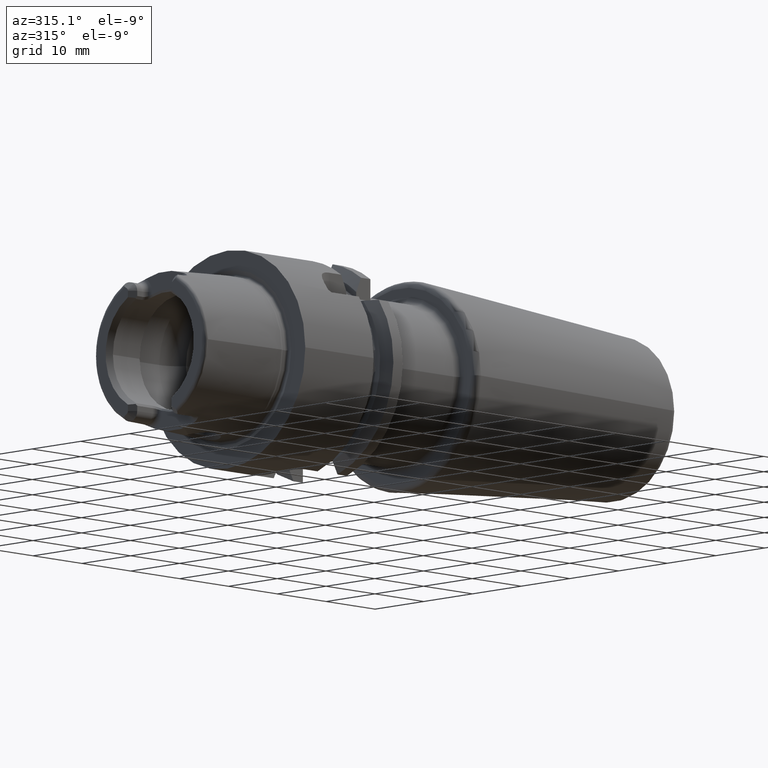
[diagram: clean part render]
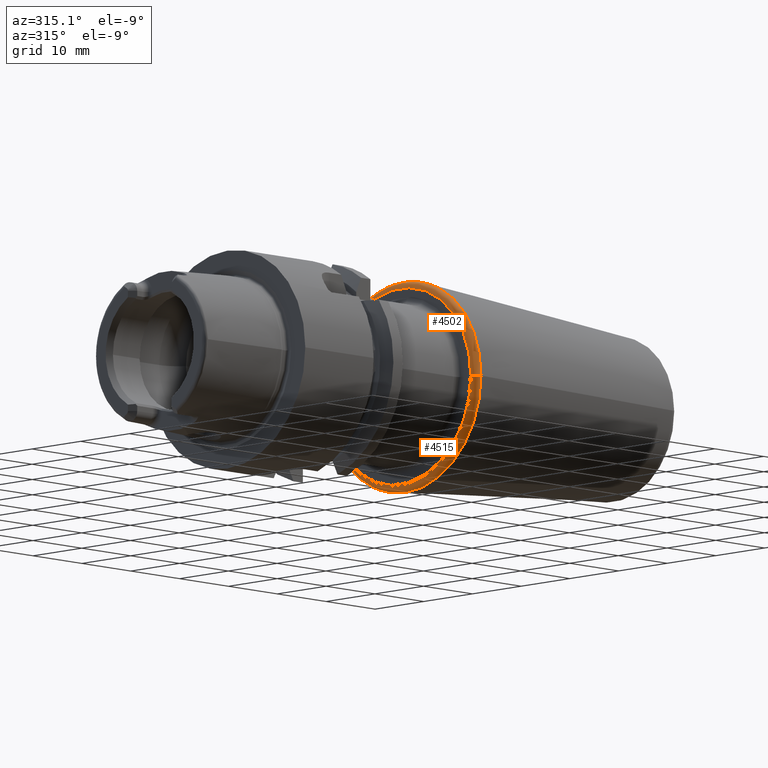
[diagram: same view with one multi-face feature highlighted, each face labeled with its STEP entity id]
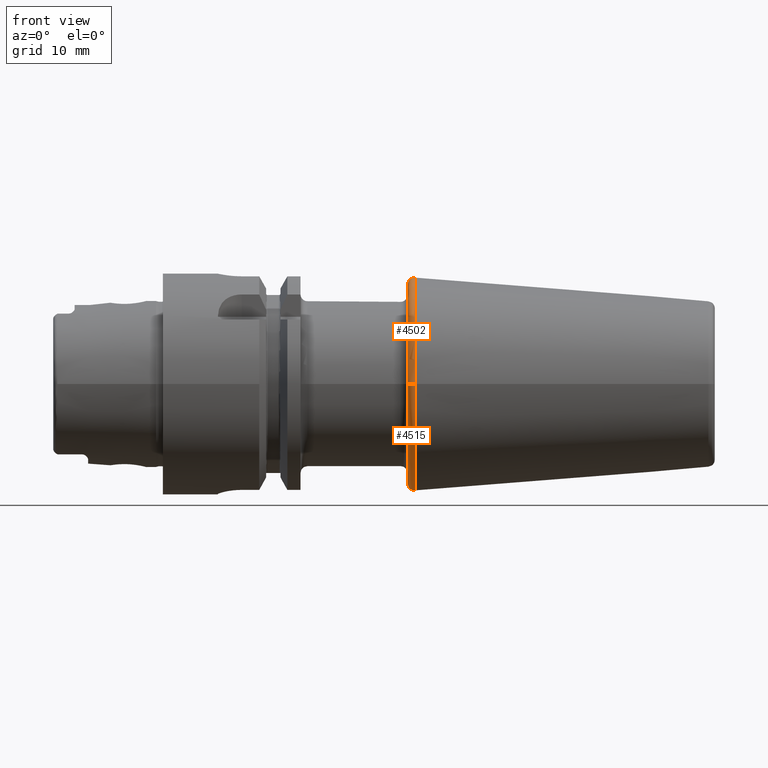
[diagram: same view with one multi-face feature highlighted, each face labeled with its STEP entity id]
A machine part, auxiliary view. The highlighted faces form ONE feature: a constant-radius fillet chain: 2 tangent blend faces with common blend radius 1 mm. The faces share edges in the B-rep.
A second angle (front view) of the same feature is appended — it is thin or edge-on in the first view.
Their STEP definitions:
[1] entity #4515 (Torus):
#1292=CARTESIAN_POINT('',(3.545E1,0.E0,0.E0));
#1293=DIRECTION('',(-1.E0,0.E0,0.E0));
#1294=DIRECTION('',(0.E0,1.E0,0.E0));
#1295=AXIS2_PLACEMENT_3D('',#1292,#1293,#1294);
#1297=CARTESIAN_POINT('',(3.645E1,-1.442436713373E1,0.E0));
#1298=DIRECTION('',(0.E0,0.E0,1.E0));
#1299=DIRECTION('',(-1.E0,0.E0,0.E0));
#1300=AXIS2_PLACEMENT_3D('',#1297,#1298,#1299);
#1302=CARTESIAN_POINT('',(3.645E1,1.442436713373E1,0.E0));
#1303=DIRECTION('',(0.E0,0.E0,-1.E0));
#1304=DIRECTION('',(-1.E0,0.E0,0.E0));
#1305=AXIS2_PLACEMENT_3D('',#1302,#1303,#1304);
#1311=CARTESIAN_POINT('',(3.652845909573E1,0.E0,0.E0));
#1312=DIRECTION('',(-1.E0,0.E0,0.E0));
#1313=DIRECTION('',(0.E0,1.E0,0.E0));
#1314=AXIS2_PLACEMENT_3D('',#1311,#1312,#1313);
#3216=CARTESIAN_POINT('',(3.652845909573E1,1.542128446746E1,
2.311915140454E-12));
#3217=VERTEX_POINT('',#3216);
#3218=CARTESIAN_POINT('',(3.652845909573E1,-1.542128446746E1,
-2.312129438614E-12));
#3219=VERTEX_POINT('',#3218);
#3220=CARTESIAN_POINT('',(3.545E1,-1.442436713373E1,1.172282022681E-14));
#3221=CARTESIAN_POINT('',(3.545E1,1.442436713373E1,0.E0));
#3222=VERTEX_POINT('',#3220);
#3223=VERTEX_POINT('',#3221);
#4503=CARTESIAN_POINT('',(3.645E1,0.E0,0.E0));
#4504=DIRECTION('',(1.E0,0.E0,0.E0));
#4505=DIRECTION('',(0.E0,9.999686332903E-1,7.920381022621E-3));
#4506=AXIS2_PLACEMENT_3D('',#4503,#4504,#4505);
#4507=TOROIDAL_SURFACE('',#4506,1.442436713373E1,1.E0);
#4508=ORIENTED_EDGE('',*,*,#4479,.T.);
#4509=ORIENTED_EDGE('',*,*,#4498,.T.);
#4511=ORIENTED_EDGE('',*,*,#4510,.F.);
#4512=ORIENTED_EDGE('',*,*,#4494,.F.);
#4513=EDGE_LOOP('',(#4508,#4509,#4511,#4512));
#4514=FACE_OUTER_BOUND('',#4513,.F.);
#4515=ADVANCED_FACE('',(#4514),#4507,.T.);
#1296=CIRCLE('',#1295,1.442436713373E1);
#1301=CIRCLE('',#1300,1.E0);
#1306=CIRCLE('',#1305,1.E0);
#1315=CIRCLE('',#1314,1.542128446746E1);
#4479=EDGE_CURVE('',#3223,#3222,#1296,.T.);
#4494=EDGE_CURVE('',#3223,#3217,#1306,.T.);
#4498=EDGE_CURVE('',#3222,#3219,#1301,.T.);
#4510=EDGE_CURVE('',#3217,#3219,#1315,.T.);
[2] entity #4502 (Torus):
#1287=CARTESIAN_POINT('',(3.545E1,0.E0,0.E0));
#1288=DIRECTION('',(-1.E0,0.E0,0.E0));
#1289=DIRECTION('',(0.E0,-1.E0,0.E0));
#1290=AXIS2_PLACEMENT_3D('',#1287,#1288,#1289);
#1297=CARTESIAN_POINT('',(3.645E1,-1.442436713373E1,0.E0));
#1298=DIRECTION('',(0.E0,0.E0,1.E0));
#1299=DIRECTION('',(-1.E0,0.E0,0.E0));
#1300=AXIS2_PLACEMENT_3D('',#1297,#1298,#1299);
#1302=CARTESIAN_POINT('',(3.645E1,1.442436713373E1,0.E0));
#1303=DIRECTION('',(0.E0,0.E0,-1.E0));
#1304=DIRECTION('',(-1.E0,0.E0,0.E0));
#1305=AXIS2_PLACEMENT_3D('',#1302,#1303,#1304);
#1330=CARTESIAN_POINT('',(3.652845909573E1,0.E0,0.E0));
#1331=DIRECTION('',(-1.E0,0.E0,0.E0));
#1332=DIRECTION('',(0.E0,-1.E0,0.E0));
#1333=AXIS2_PLACEMENT_3D('',#1330,#1331,#1332);
#3216=CARTESIAN_POINT('',(3.652845909573E1,1.542128446746E1,
2.311915140454E-12));
#3217=VERTEX_POINT('',#3216);
#3218=CARTESIAN_POINT('',(3.652845909573E1,-1.542128446746E1,
-2.312129438614E-12));
#3219=VERTEX_POINT('',#3218);
#3220=CARTESIAN_POINT('',(3.545E1,-1.442436713373E1,1.172282022681E-14));
#3221=CARTESIAN_POINT('',(3.545E1,1.442436713373E1,0.E0));
#3222=VERTEX_POINT('',#3220);
#3223=VERTEX_POINT('',#3221);
#4488=CARTESIAN_POINT('',(3.645E1,0.E0,0.E0));
#4489=DIRECTION('',(1.E0,0.E0,0.E0));
#4490=DIRECTION('',(0.E0,-9.999686332903E-1,-7.920381022622E-3));
#4491=AXIS2_PLACEMENT_3D('',#4488,#4489,#4490);
#4492=TOROIDAL_SURFACE('',#4491,1.442436713373E1,1.E0);
#4493=ORIENTED_EDGE('',*,*,#4477,.T.);
#4495=ORIENTED_EDGE('',*,*,#4494,.T.);
#4497=ORIENTED_EDGE('',*,*,#4496,.F.);
#4499=ORIENTED_EDGE('',*,*,#4498,.F.);
#4500=EDGE_LOOP('',(#4493,#4495,#4497,#4499));
#4501=FACE_OUTER_BOUND('',#4500,.F.);
#4502=ADVANCED_FACE('',(#4501),#4492,.T.);
#1291=CIRCLE('',#1290,1.442436713373E1);
#1301=CIRCLE('',#1300,1.E0);
#1306=CIRCLE('',#1305,1.E0);
#1334=CIRCLE('',#1333,1.542128446746E1);
#4477=EDGE_CURVE('',#3222,#3223,#1291,.T.);
#4494=EDGE_CURVE('',#3223,#3217,#1306,.T.);
#4496=EDGE_CURVE('',#3219,#3217,#1334,.T.);
#4498=EDGE_CURVE('',#3222,#3219,#1301,.T.);